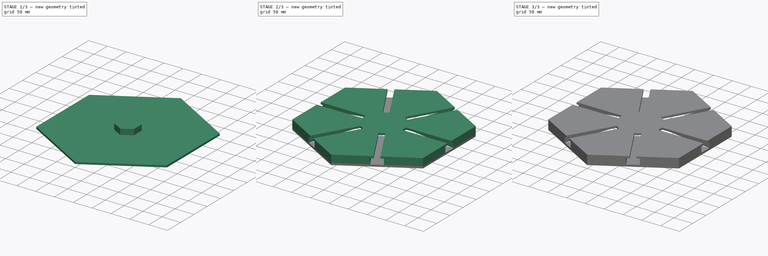
[diagram: build sequence overview — one tinted view per stage of 3, left to right]
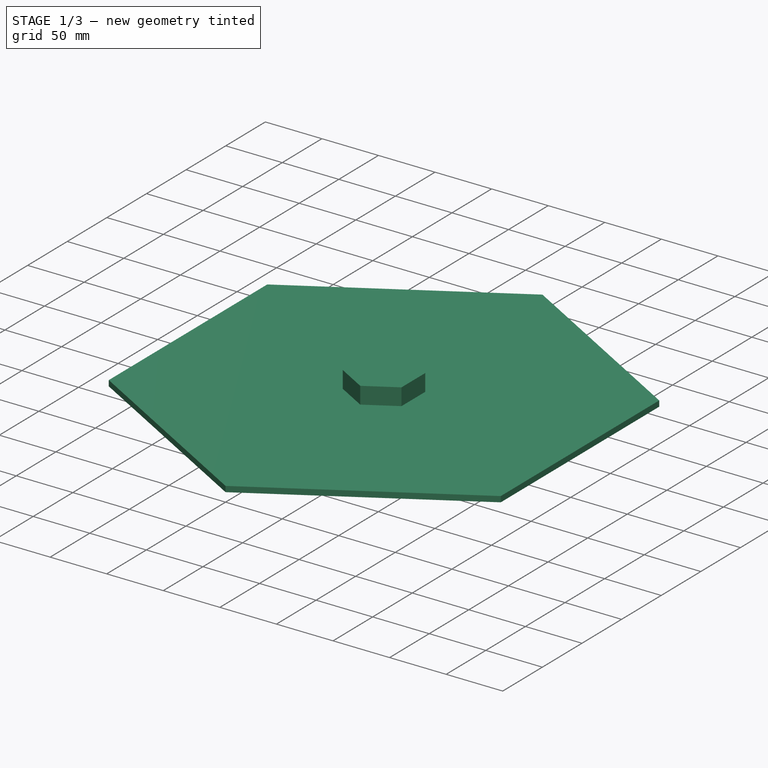
[diagram: stage 1 of 3 — iso view after this stage's code; geometry added in this stage tinted green]
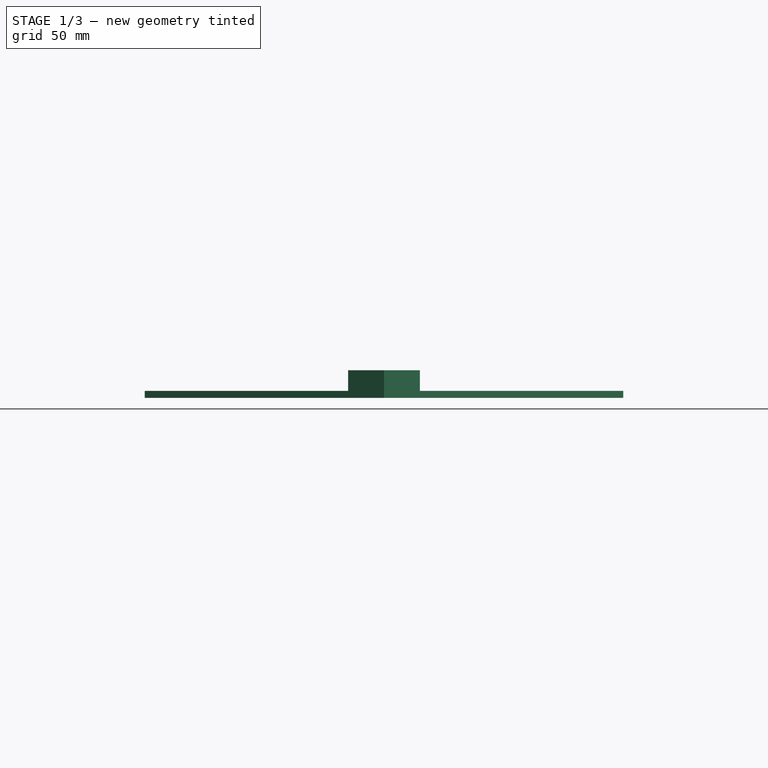
[diagram: stage 1 of 3 — front view after this stage's code; geometry added in this stage tinted green]
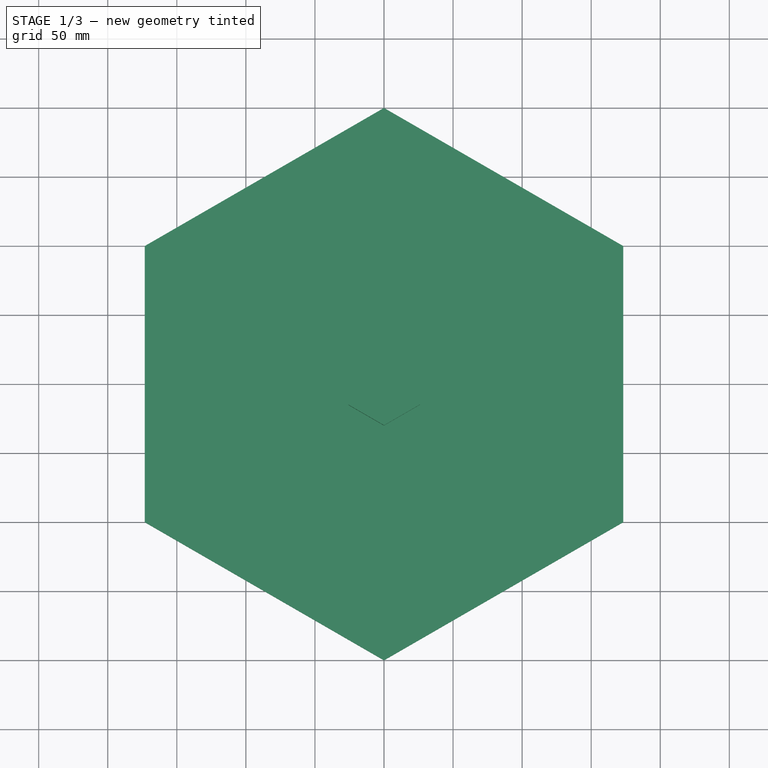
[diagram: stage 1 of 3 — top view after this stage's code; geometry added in this stage tinted green]
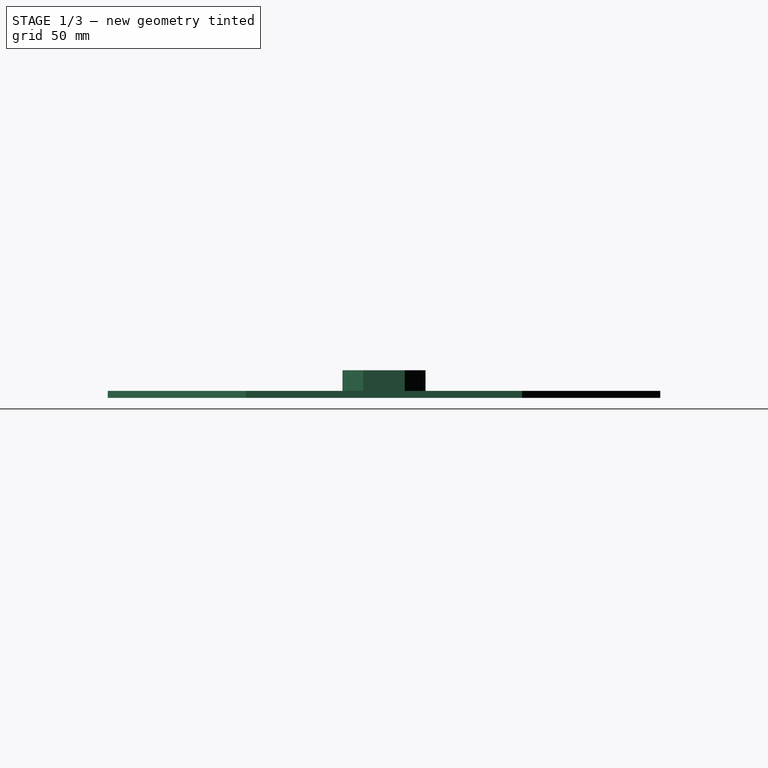
[diagram: stage 1 of 3 — right view after this stage's code; geometry added in this stage tinted green]
FCSTD DOCUMENT  (FreeCAD 0.19R)
Label: Centre_Support
License: Creative Commons Attribution-NonCommercial
LicenseURL: http://creativecommons.org/licenses/by-nc/4.0/
objects: Sketcher::SketchObject×6, PartDesign::Pad×4, PartDesign::Pocket×2, Part::FeaturePython×2, PartDesign::PolarPattern×1, PartDesign::Body×1
note: 22 computed .brp shape members not serialized (recipe doc carries the construction recipe); baked Part::Feature solids carry a one-line shape summary decoded from their .brp

FEATURE [Sketcher::SketchObject] Sketch
  FullyConstrained = true
  MapMode = 5
  Support = -> [XY_Plane]
  sketch-geometry (7):
    g0: LineSegment StartX=173.205 StartY=-100 StartZ=0 EndX=173.205 EndY=100 EndZ=0
    g1: LineSegment StartX=173.205 StartY=100 StartZ=0 EndX=0 EndY=200 EndZ=0
    g2: LineSegment StartX=0 StartY=200 StartZ=0 EndX=-173.205 EndY=100 EndZ=0
    g3: LineSegment StartX=-173.205 StartY=100 StartZ=0 EndX=-173.205 EndY=-100 EndZ=0
    g4: LineSegment StartX=-173.205 StartY=-100 StartZ=0 EndX=0 EndY=-200 EndZ=0
    g5: LineSegment StartX=0 StartY=-200 StartZ=0 EndX=173.205 EndY=-100 EndZ=0
    g6: Circle CenterX=0 CenterY=0 CenterZ=0 NormalX=0 NormalY=0 NormalZ=1 AngleXU=0 Radius=200
  constraints (16):
    c: Coincident(g0,g1)
    c: Coincident(g1,g2)
    c: Coincident(g2,g3)
    c: Coincident(g3,g4)
    c: Coincident(g4,g5)
    c: Coincident(g5,g0)
    c: Equal(g0, g1-g5) x5
    c: PointOnObject(g0,g6)
    c: PointOnObject(g1,g6)
    c: PointOnObject(g2,g6)
    c: PointOnObject(g3,g6)
    c: PointOnObject(g4,g6)
    c: PointOnObject(g5,g6)
    c: Coincident(g6,g-1)
    c: Radius(g6) = 200
    c: Vertical(g0)
FEATURE [PartDesign::Pad] Pad
  Direction = (1,1,1)
  Length = 5
  Length2 = 100
  Profile = -> Sketch
  Type = 0
FEATURE [Sketcher::SketchObject] Sketch001
  FullyConstrained = true
  MapMode = 5
  Placement = pos=(0,0,5) rot=(0,0,1;0rad)
  Support = -> [Pad]
  sketch-geometry (7):
    g0: LineSegment StartX=25.9808 StartY=-15 StartZ=0 EndX=25.9808 EndY=15 EndZ=0
    g1: LineSegment StartX=25.9808 StartY=15 StartZ=0 EndX=2.10889e-11 EndY=30 EndZ=0
    g2: LineSegment StartX=2.10889e-11 StartY=30 StartZ=0 EndX=-25.9808 EndY=15 EndZ=0
    g3: LineSegment StartX=-25.9808 StartY=15 StartZ=0 EndX=-25.9808 EndY=-15 EndZ=0
    g4: LineSegment StartX=-25.9808 StartY=-15 StartZ=0 EndX=2.10889e-11 EndY=-30 EndZ=0
    g5: LineSegment StartX=2.10889e-11 StartY=-30 StartZ=0 EndX=25.9808 EndY=-15 EndZ=0
    g6: Circle CenterX=0 CenterY=0 CenterZ=0 NormalX=0 NormalY=0 NormalZ=1 AngleXU=0 Radius=30
  constraints (16):
    c: Coincident(g0,g1)
    c: Coincident(g1,g2)
    c: Coincident(g2,g3)
    c: Coincident(g3,g4)
    c: Coincident(g4,g5)
    c: Coincident(g5,g0)
    c: Equal(g0, g1-g5) x5
    c: PointOnObject(g0,g6)
    c: PointOnObject(g1,g6)
    c: PointOnObject(g2,g6)
    c: PointOnObject(g3,g6)
    c: PointOnObject(g4,g6)
    c: PointOnObject(g5,g6)
    c: Coincident(g6,g-1)
    c: Vertical(g0)
    c: DistanceY(g0,g0) = 30
FEATURE [PartDesign::Pad] Pad001
  BaseFeature = -> Pad
  Direction = (1,1,1)
  Length = 15
  Length2 = 100
  Profile = -> Sketch001
  Type = 0
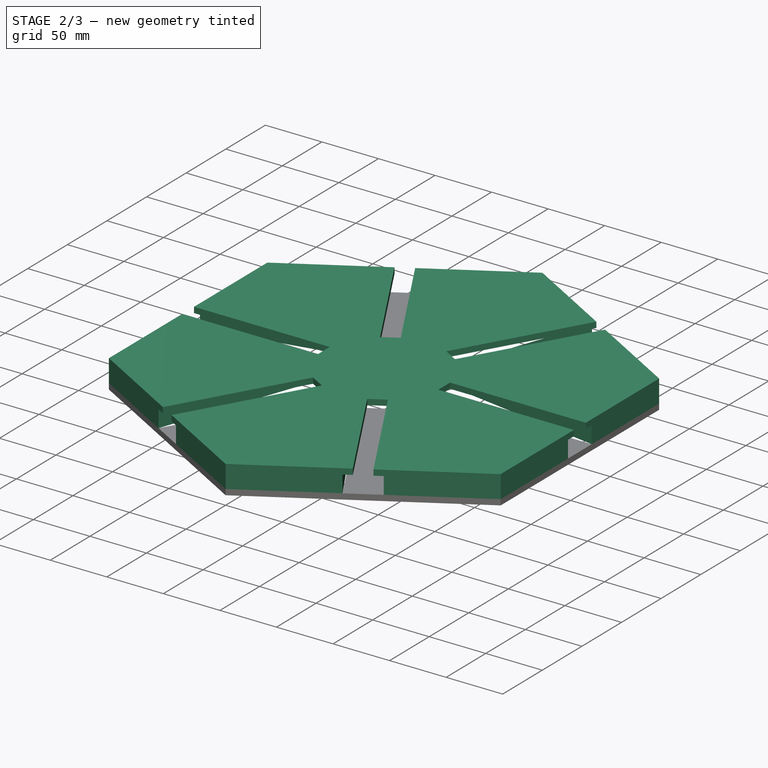
[diagram: stage 2 of 3 — iso view after this stage's code; geometry added in this stage tinted green]
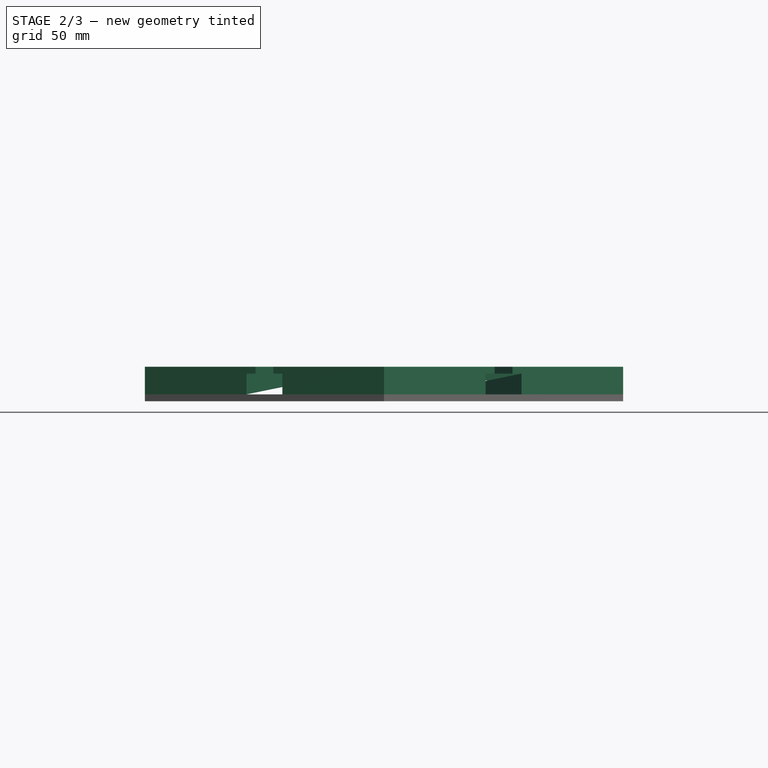
[diagram: stage 2 of 3 — front view after this stage's code; geometry added in this stage tinted green]
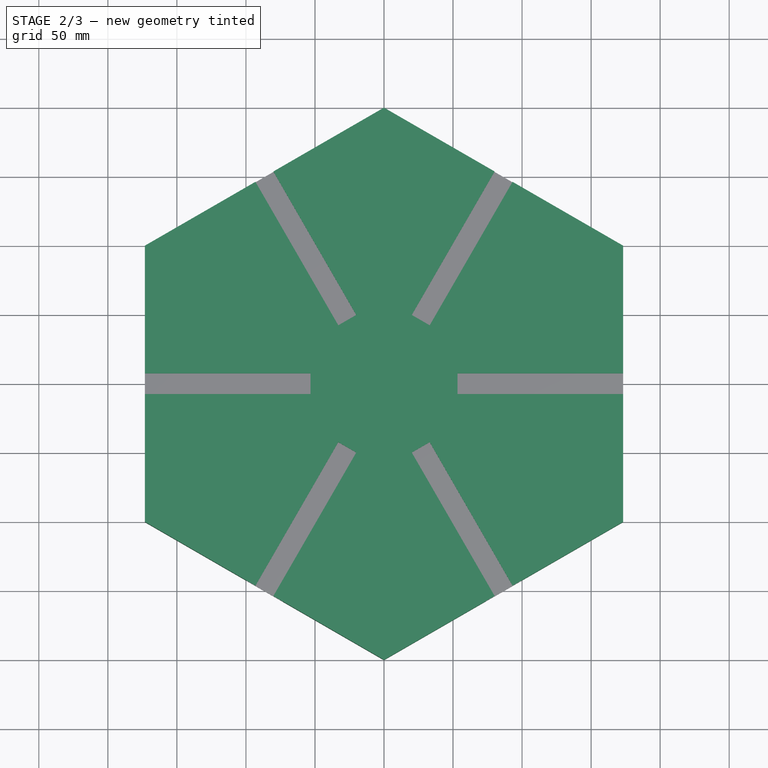
[diagram: stage 2 of 3 — top view after this stage's code; geometry added in this stage tinted green]
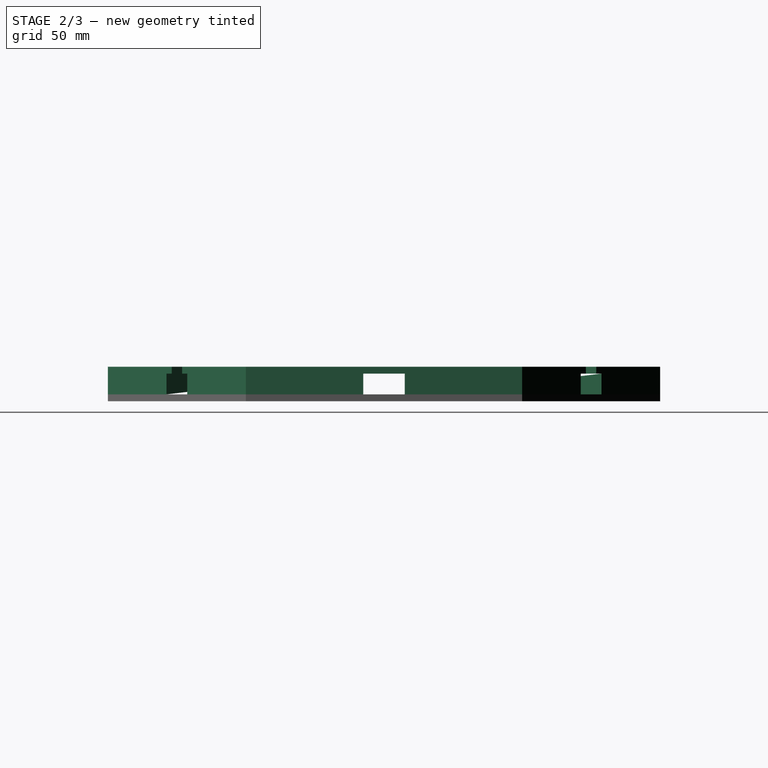
[diagram: stage 2 of 3 — right view after this stage's code; geometry added in this stage tinted green]
FEATURE [Sketcher::SketchObject] Sketch002
  ExternalGeometry = -> [Pad001]
  FullyConstrained = false
  MapMode = 5
  Placement = pos=(0,0,20) rot=(0,0,1;0rad)
  Support = -> [Pad001]
  sketch-geometry (40):
    g0: LineSegment StartX=0 StartY=200 StartZ=0 EndX=80.1073 EndY=153.75 EndZ=0
    g1: LineSegment StartX=80.1073 StartY=153.75 StartZ=0 EndX=20.1073 EndY=49.827 EndZ=0
    g2: LineSegment StartX=20.1073 StartY=49.827 StartZ=0 EndX=33.0977 EndY=42.327 EndZ=0
    g3: LineSegment StartX=33.0977 StartY=42.327 StartZ=0 EndX=93.0977 EndY=146.25 EndZ=0
    g4: LineSegment StartX=93.0977 StartY=146.25 StartZ=0 EndX=173.205 EndY=100 EndZ=0
    g5: LineSegment StartX=173.205 StartY=100 StartZ=0 EndX=173.205 EndY=7.5 EndZ=0
    g6: LineSegment StartX=173.205 StartY=7.5 StartZ=0 EndX=53.2051 EndY=7.5 EndZ=0
    g7: LineSegment StartX=53.2051 StartY=7.5 StartZ=0 EndX=53.2051 EndY=-7.5 EndZ=0
    g8: LineSegment StartX=53.2051 StartY=-7.5 StartZ=0 EndX=173.205 EndY=-7.5 EndZ=0
    g9: LineSegment StartX=173.205 StartY=-7.5 StartZ=0 EndX=173.205 EndY=-100 EndZ=0
    g10: LineSegment StartX=173.205 StartY=-100 StartZ=0 EndX=93.0977 EndY=-146.25 EndZ=0
    g11: LineSegment StartX=93.0977 StartY=-146.25 StartZ=0 EndX=33.0977 EndY=-42.327 EndZ=0
    g12: LineSegment StartX=33.0977 StartY=-42.327 StartZ=0 EndX=20.1073 EndY=-49.827 EndZ=0
    g13: LineSegment StartX=20.1073 StartY=-49.827 StartZ=0 EndX=80.1073 EndY=-153.75 EndZ=0
    g14: LineSegment StartX=80.1073 StartY=-153.75 StartZ=0 EndX=0 EndY=-200 EndZ=0
    g15: LineSegment StartX=0 StartY=-200 StartZ=0 EndX=-80.1073 EndY=-153.75 EndZ=0
    g16: LineSegment StartX=-80.1073 StartY=-153.75 StartZ=0 EndX=-20.1073 EndY=-49.827 EndZ=0
    g17: LineSegment StartX=-20.1073 StartY=-49.827 StartZ=0 EndX=-33.0977 EndY=-42.327 EndZ=0
    g18: LineSegment StartX=-33.0977 StartY=-42.327 StartZ=0 EndX=-93.0977 EndY=-146.25 EndZ=0
    g19: LineSegment StartX=-93.0977 StartY=-146.25 StartZ=0 EndX=-173.205 EndY=-100 EndZ=0
    g20: LineSegment StartX=-173.205 StartY=-100 StartZ=0 EndX=-173.205 EndY=-7.5 EndZ=0
    g21: LineSegment StartX=-173.205 StartY=-7.5 StartZ=0 EndX=-53.2051 EndY=-7.5 EndZ=0
    g22: LineSegment StartX=-53.2051 StartY=-7.5 StartZ=0 EndX=-53.2051 EndY=7.5 EndZ=0
    g23: LineSegment StartX=-53.2051 StartY=7.5 StartZ=0 EndX=-173.205 EndY=7.5 EndZ=0
    g24: LineSegment StartX=-173.205 StartY=7.5 StartZ=0 EndX=-173.205 EndY=100 EndZ=0
    g25: LineSegment StartX=-173.205 StartY=100 StartZ=0 EndX=-93.0977 EndY=146.25 EndZ=0
    g26: LineSegment StartX=-93.0977 StartY=146.25 StartZ=0 EndX=-33.0977 EndY=42.327 EndZ=0
    g27: LineSegment StartX=-33.0977 StartY=42.327 StartZ=0 EndX=-20.1073 EndY=49.827 EndZ=0
    g28: LineSegment StartX=-20.1073 StartY=49.827 StartZ=0 EndX=-80.1073 EndY=153.75 EndZ=0
    g29: LineSegment StartX=-80.1073 StartY=153.75 StartZ=0 EndX=0 EndY=200 EndZ=0
    g30: LineSegment StartX=0 StartY=0 StartZ=0 EndX=-111.279 EndY=192.741 EndZ=0
    g31: LineSegment StartX=0 StartY=0 StartZ=0 EndX=155.544 EndY=269.411 EndZ=0
    g32: LineSegment StartX=0 StartY=0 StartZ=0 EndX=224.976 EndY=-389.671 EndZ=0
    g33: LineSegment StartX=-53.2051 StartY=-30.718 StartZ=0 EndX=-2.13e-14 EndY=-61.4359 EndZ=0
    g34: LineSegment StartX=-2.13e-14 StartY=-61.4359 StartZ=0 EndX=53.2051 EndY=-30.718 EndZ=0
    g35: LineSegment StartX=53.2051 StartY=-30.718 StartZ=0 EndX=53.2051 EndY=30.718 EndZ=0
    g36: LineSegment StartX=53.2051 StartY=30.718 StartZ=0 EndX=2.13e-14 EndY=61.4359 EndZ=0
    g37: LineSegment StartX=2.13e-14 StartY=61.4359 StartZ=0 EndX=-53.2051 EndY=30.718 EndZ=0
    g38: LineSegment StartX=-53.2051 StartY=30.718 StartZ=0 EndX=-53.2051 EndY=-30.718 EndZ=0
    g39: Circle CenterX=0 CenterY=0 CenterZ=0 NormalX=0 NormalY=0 NormalZ=1 AngleXU=0 Radius=61.4359
  constraints (104):
    c: Coincident(g0,g1)
    c: Coincident(g1,g2)
    c: Coincident(g2,g3)
    c: Coincident(g3,g4)
    c: Coincident(g4,g5)
    c: Vertical(g5)
    c: Coincident(g5,g6)
    c: Coincident(g6,g7)
    c: Coincident(g7,g8)
    c: Horizontal(g8)
    c: Coincident(g8,g9)
    c: Vertical(g9)
    c: Coincident(g9,g10)
    c: Coincident(g10,g11)
    c: Coincident(g11,g12)
    c: Coincident(g12,g13)
    c: Coincident(g13,g14)
    c: Coincident(g14,g15)
    c: Coincident(g15,g16)
    c: Coincident(g16,g17)
    c: Coincident(g17,g18)
    c: Coincident(g18,g19)
    c: Coincident(g19,g20)
    c: Coincident(g20,g21)
    c: Horizontal(g21)
    c: Coincident(g21,g22)
    c: Vertical(g22)
    c: Coincident(g22,g23)
    c: Horizontal(g23)
    c: Coincident(g23,g24)
    c: Vertical(g24)
    c: Coincident(g24,g25)
    c: Coincident(g25,g26)
    c: Coincident(g26,g27)
    c: Coincident(g27,g28)
    c: Coincident(g28,g29)
    c: Coincident(g29,g0)
    c: Coincident(g19,g-8)
    c: Coincident(g14,g-8)
    c: Coincident(g9,g-4)
    c: Coincident(g4,g-5)
    c: Coincident(g0,g-6)
    c: Coincident(g24,g-7)
    c: PointOnObject(g18,g-8)
    c: PointOnObject(g15,g-8)
    c: PointOnObject(g13,g-3)
    c: PointOnObject(g3,g-5)
    c: PointOnObject(g0,g-5)
    c: PointOnObject(g28,g-6)
    c: PointOnObject(g25,g-6)
    c: Equal(g27,g22)
    c: Equal(g22,g2)
    c: Equal(g2,g7)
    c: Equal(g7,g12)
    c: Equal(g12,g17)
    c: Symmetric(g23,g20,g-1)
    c: Horizontal(g6)
    c: Vertical(g7)
    c: Horizontal(g22,g6)
    c: Parallel(g2,g-10)
    c: Perpendicular(g27,g28)
    c: Perpendicular(g26,g27)
    c: Parallel(g2,g17)
    c: Parallel(g12,g27)
    c: Equal(g21,g16)
    c: Equal(g16,g11)
    c: Equal(g11,g6)
    c: Equal(g6,g1)
    c: Equal(g1,g26)
    c: Perpendicular(g17,g18)
    c: Parallel(g18,g16)
    c: Perpendicular(g12,g13)
    c: Equal(g13,g11)
    c: Coincident(g30,g-1)
    c: Coincident(g31,g-1)
    c: Symmetric(g-10,g-9,g30)
    c: Symmetric(g-10,g-10,g31)
    c: Parallel(g1,g31)
    c: Parallel(g31,g3)
    c: Distance(g28) = 120
    c: Coincident(g32,g-1)
    c: Symmetric(g9,g14,g32)
    c: Symmetric(g12,g11,g32)
    c: Distance(g25,g28) = 15
    c: Coincident(g33,g34)
    c: Coincident(g34,g35)
    c: Coincident(g35,g36)
    c: Coincident(g36,g37)
    c: Coincident(g37,g38)
    c: Coincident(g38,g33)
    c: Equal(g33, g34-g38) x5
    c: PointOnObject(g33,g39)
    c: PointOnObject(g34,g39)
    c: PointOnObject(g35,g39)
    c: PointOnObject(g36,g39)
    c: PointOnObject(g37,g39)
    c: PointOnObject(g38,g39)
    c: Coincident(g39,g-1)
    c: PointOnObject(g21,g38)
    c: PointOnObject(g22,g38)
    c: Symmetric(g26,g27,g30)
    c: Symmetric(g1,g2,g31)
    c: Perpendicular(g11,g12)
    c: Symmetric(g17,g16,g31)
FEATURE [Sketcher::SketchObject] Sketch003
  ExternalGeometry = -> [Pad001]
  FullyConstrained = true
  MapMode = 5
  Placement = pos=(0,0,5) rot=(0,0,1;0rad)
  Support = -> [Pad001]
  sketch-geometry (4):
    g0: LineSegment StartX=173.205 StartY=15 StartZ=0 EndX=25.9808 EndY=15 EndZ=0
    g1: LineSegment StartX=25.9808 StartY=15 StartZ=0 EndX=99.5929 EndY=142.5 EndZ=0
    g2: LineSegment StartX=99.5929 StartY=142.5 StartZ=0 EndX=173.205 EndY=100 EndZ=0
    g3: LineSegment StartX=173.205 StartY=100 StartZ=0 EndX=173.205 EndY=15 EndZ=0
  constraints (11):
    c: PointOnObject(g0,g-3)
    c: Coincident(g0,g-5)
    c: Coincident(g1,g0)
    c: PointOnObject(g1,g-6)
    c: Coincident(g2,g1)
    c: Coincident(g2,g-6)
    c: Coincident(g3,g2)
    c: Coincident(g3,g0)
    c: Horizontal(g0)
    c: Perpendicular(g2,g1)
    c: Angle(g0,g1) = 1.0472
FEATURE [PartDesign::Pad] Pad003
  BaseFeature = -> Pad001
  Direction = (1,1,1)
  Length = 15
  Length2 = 100
  Profile = -> Sketch003
  Type = 0
FEATURE [PartDesign::PolarPattern] PolarPattern
  Angle = 360
  Axis = -> Sketch003 [N_Axis]
  BaseFeature = -> Pad003
  Occurrences = 6
  Originals = -> [Pad003]
FEATURE [PartDesign::Pad] Pad002
  BaseFeature = -> PolarPattern
  Direction = (1,1,1)
  Length = 5
  Length2 = 100
  Profile = -> Sketch002
  Type = 0
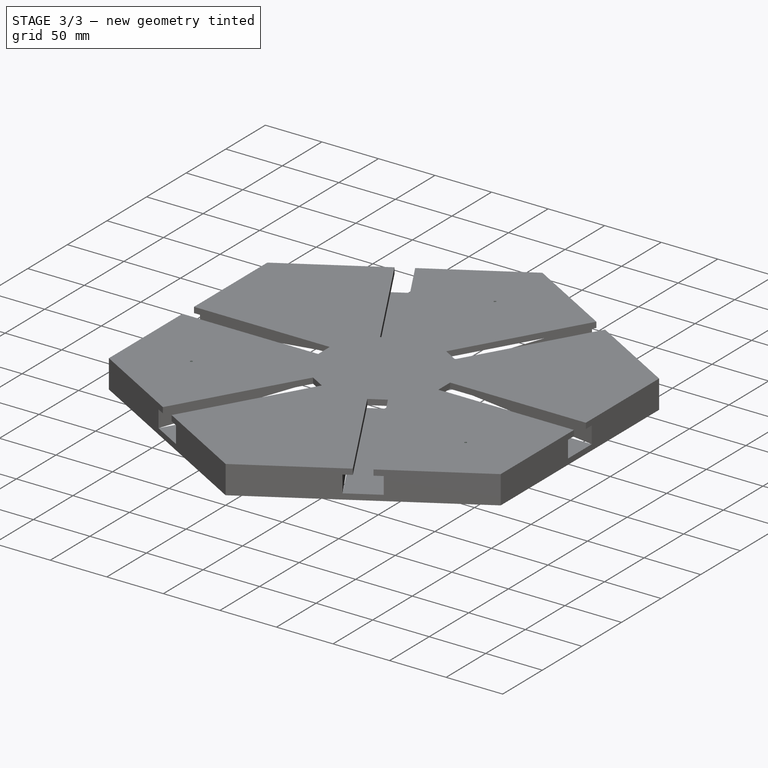
[diagram: stage 3 of 3 — iso view after this stage's code; geometry added in this stage tinted green]
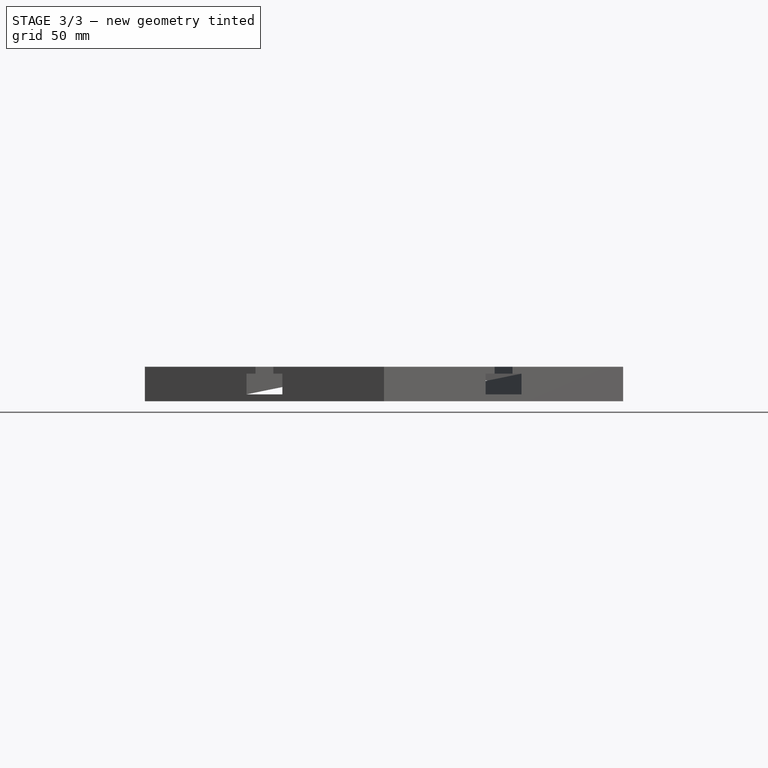
[diagram: stage 3 of 3 — front view after this stage's code; geometry added in this stage tinted green]
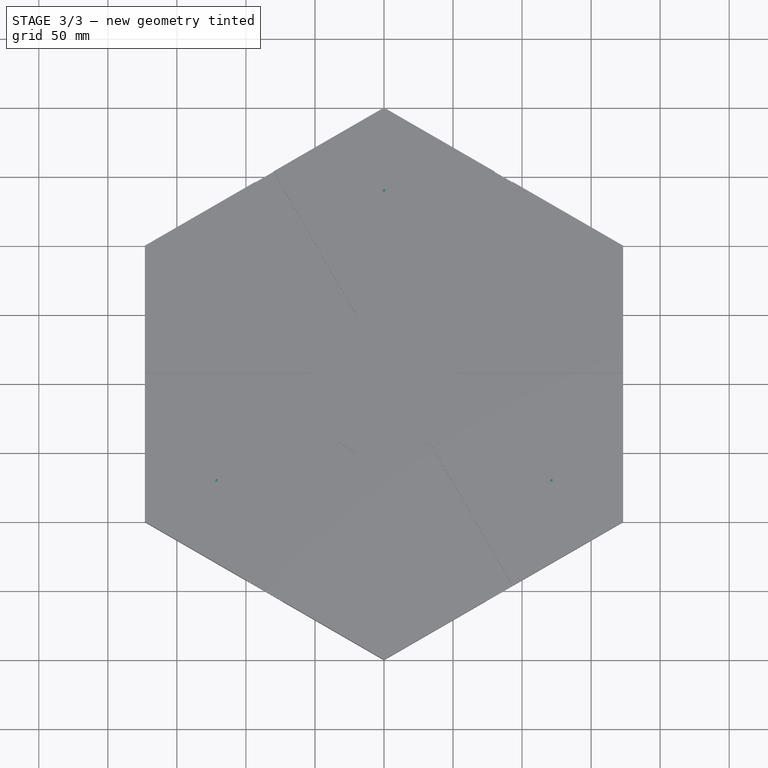
[diagram: stage 3 of 3 — top view after this stage's code; geometry added in this stage tinted green]
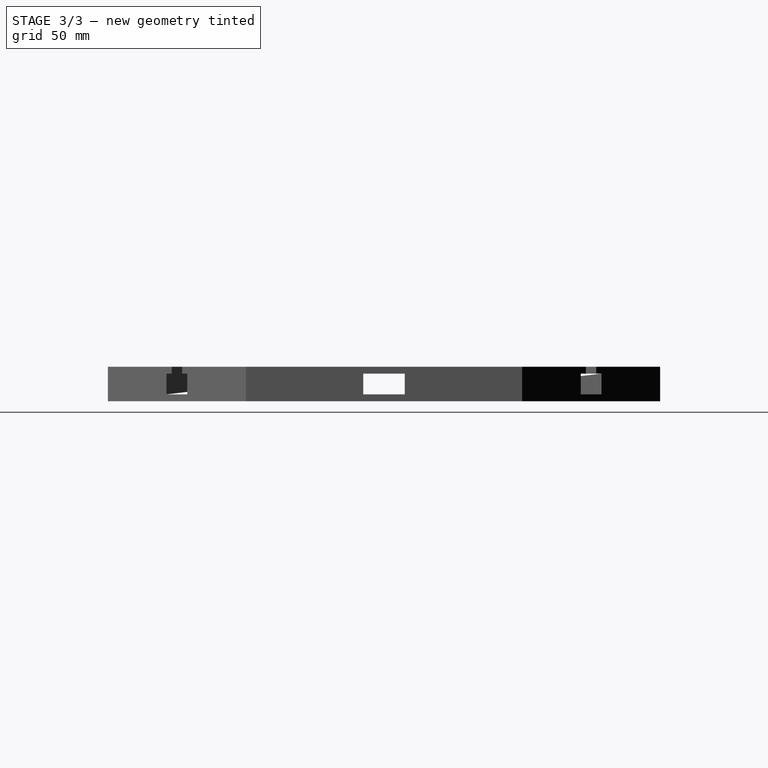
[diagram: stage 3 of 3 — right view after this stage's code; geometry added in this stage tinted green]
FEATURE [Sketcher::SketchObject] Sketch004
  ExternalGeometry = -> [Pad002]
  FullyConstrained = true
  MapMode = 5
  Placement = pos=(0,0,25) rot=(0,0,1;0rad)
  Support = -> [Pad002]
  sketch-geometry (6):
    g0: Circle CenterX=0 CenterY=0 CenterZ=0 NormalX=0 NormalY=0 NormalZ=1 AngleXU=0 Radius=140
    g1: LineSegment StartX=0 StartY=0 StartZ=0 EndX=173.205 EndY=-100 EndZ=0
    g2: LineSegment StartX=0 StartY=0 StartZ=0 EndX=-173.205 EndY=-100 EndZ=0
    g3: Circle CenterX=0 CenterY=140 CenterZ=0 NormalX=0 NormalY=0 NormalZ=1 AngleXU=0 Radius=1
    g4: Circle CenterX=121.244 CenterY=-70 CenterZ=0 NormalX=0 NormalY=0 NormalZ=1 AngleXU=0 Radius=1
    g5: Circle CenterX=-121.244 CenterY=-70 CenterZ=0 NormalX=0 NormalY=0 NormalZ=1 AngleXU=0 Radius=1
  constraints (15):
    c: Coincident(g0,g-1)
    c: Radius(g0) = 140
    c: Coincident(g1,g-1)
    c: Coincident(g2,g-1)
    c: Coincident(g-4,g1)
    c: Coincident(g2,g-3)
    c: PointOnObject(g3,g0)
    c: PointOnObject(g3,g-2)
    c: PointOnObject(g5,g2)
    c: PointOnObject(g5,g0)
    c: PointOnObject(g4,g1)
    c: PointOnObject(g4,g0)
    c: Equal(g4,g5)
    c: Equal(g5,g3)
    c: Radius(g4) = 1
FEATURE [PartDesign::Pocket] Pocket
  BaseFeature = -> Pad002
  Length = 3
  Length2 = 100
  Profile = -> Sketch004
  Type = 0
FEATURE [Part::FeaturePython] Facebinder  label="Dessus"  # WARN: FeaturePython — macro-defined, semantics opaque (R4)
  Area = 93113.6
  Extrusion = 0
  Faces = -> [Pocket]
  RemoveSplitter = false
  Sew = false
FEATURE [Sketcher::SketchObject] Sketch005
  FullyConstrained = true
  MapMode = 5
  Placement = pos=(0,0,0) rot=(1,0,0;3.14159rad)
  Support = -> [Pocket]
  sketch-geometry (1):
    g0: Circle CenterX=0 CenterY=0 CenterZ=0 NormalX=0 NormalY=0 NormalZ=1 AngleXU=0 Radius=7.5
  constraints (2):
    c: Coincident(g0,g-1)
    c: Radius(g0) = 7.5
FEATURE [PartDesign::Pocket] Pocket001
  BaseFeature = -> Pocket
  Length = 3
  Length2 = 100
  Profile = -> Sketch005
  Type = 0
FEATURE [PartDesign::Body] Body
  Group = -> [Sketch,Pad,Sketch001,Pad001,Sketch002,Sketch003,Pad003,PolarPattern,Pad002,Sketch004,Pocket,Sketch005,Pocket001]
  Origin = -> Origin
  Tip = -> Pocket001
FEATURE [Part::FeaturePython] Facebinder001  label="Dessous"  # WARN: FeaturePython — macro-defined, semantics opaque (R4)
  Area = 103746
  Extrusion = 0
  Faces = -> [Pocket001]
  RemoveSplitter = false
  Sew = false
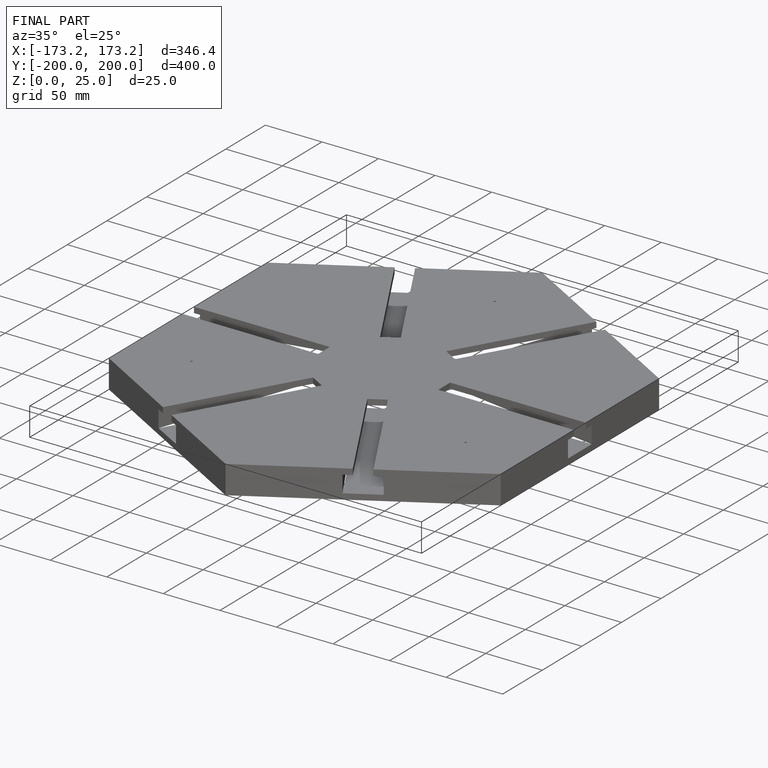
[diagram: finished part — iso view with bounding-box wireframe]
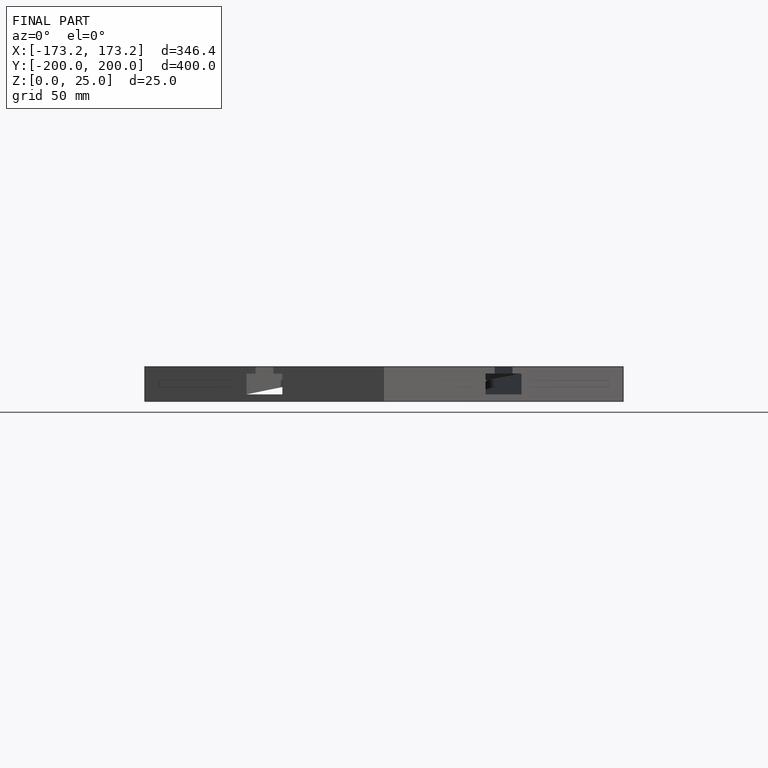
[diagram: finished part — front view with bounding-box wireframe]
